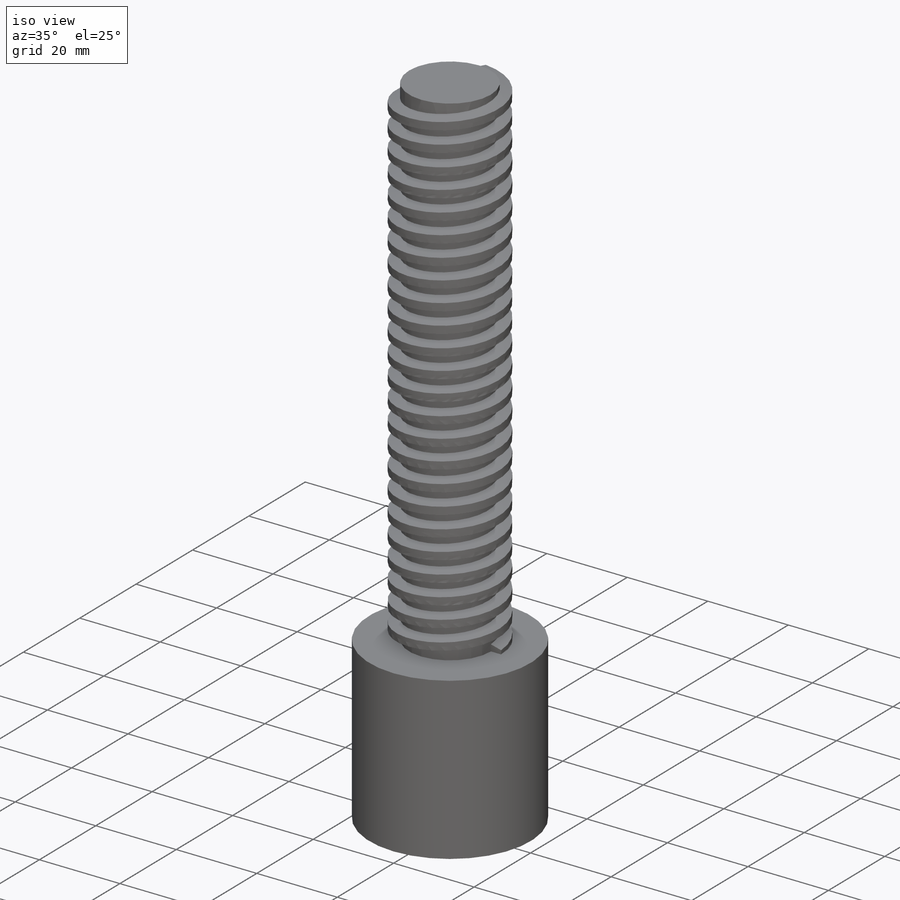
[diagram: iso view]
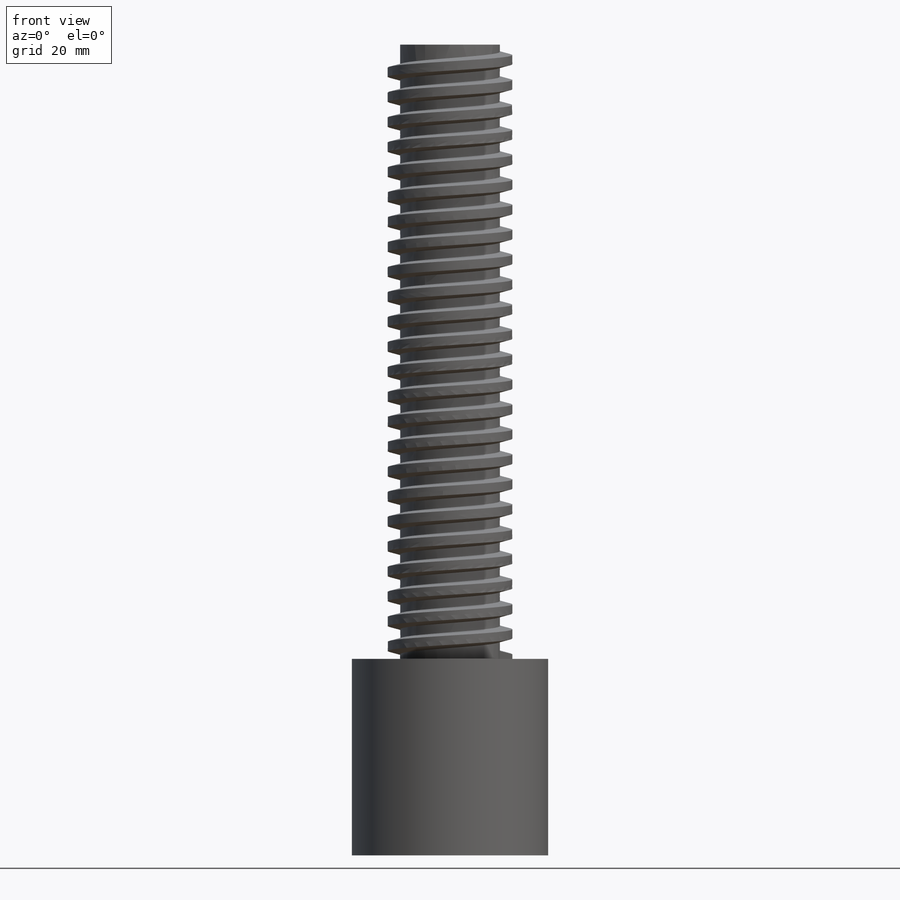
[diagram: front view]
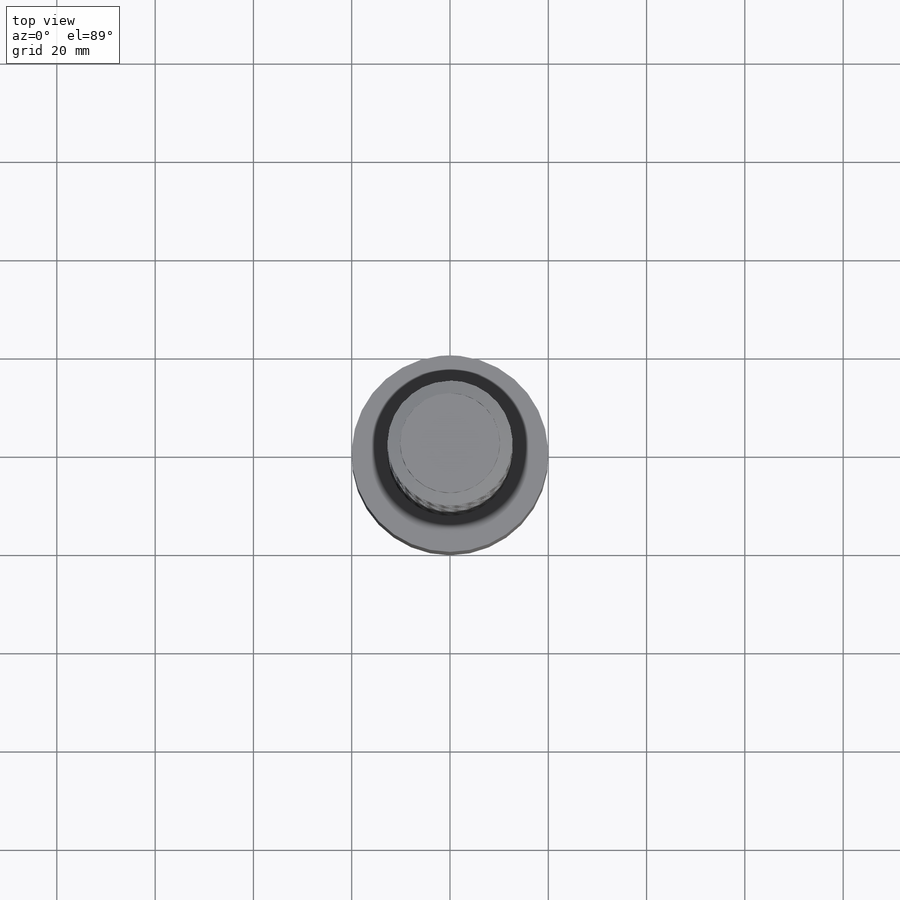
[diagram: top view]
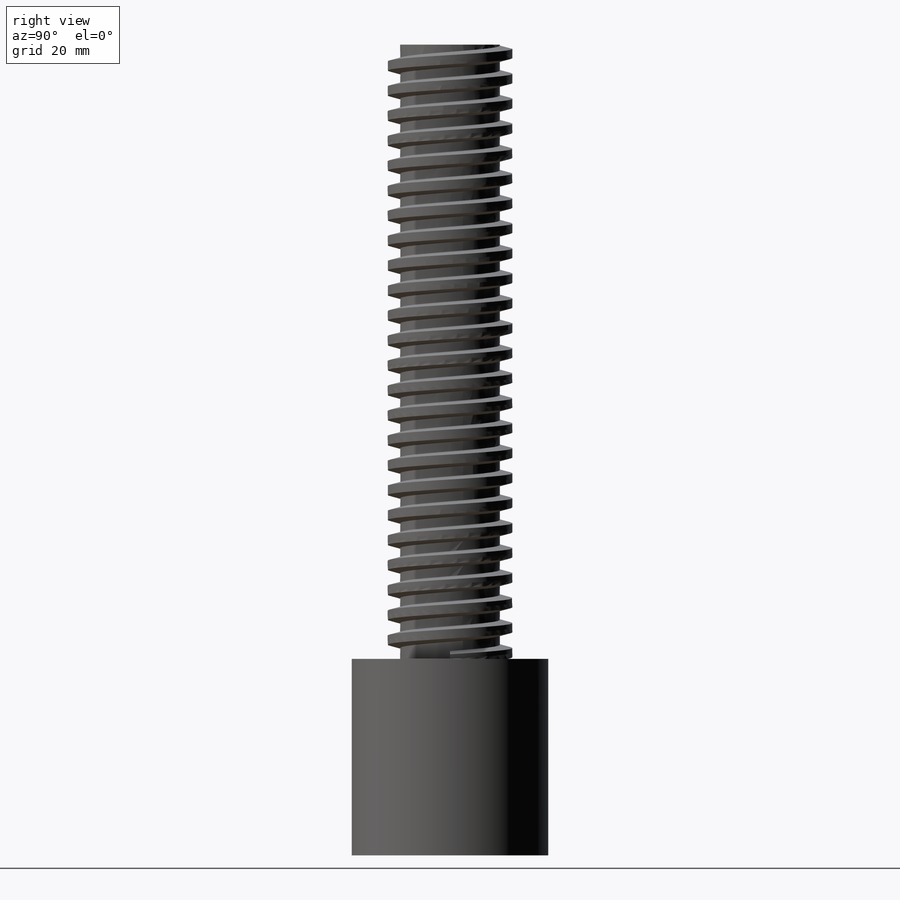
[diagram: right view]
SOLIDWORKS PART (.sldprt)
format: sldprt  version: not decoded by parser v0  size: 711,680 bytes
history: native  units: mm
features: sketch x6, extrude x2, cut_extrude x2, material x1, helix x1, sweep x1, fillet x1 (+12 scaffold rows collapsed)
feature tree (26):
  scaffold x12  (default folders/planes/origin — collapsed)
  material  "Material <not specified>"
  sketch  "Sketch1"  dims[D1=25.4mm]
  extrude  "Boss-Extrude1"  Depth=125mm
  sketch  "Sketch5"
  helix  "Helix/Spiral1"  Pitch=123.19mm
  sketch  "Sketch9"  dims[D1=2.54mm]
  cut_extrude  "Cut-Extrude1"  Depth=285.4mm
  sketch  "Sketch10"  dims[c1.D1=2.54mm c1.D2=2.54mm c1.D3=2.54mm c2.D3=~54.226201deg c3.D3=2.54mm c4.D3=14.5deg c4.D4=2.54mm c5.D4=14.5deg]
  sweep  "Sweep1"
  sketch  "Sketch2"  dims[D1=~20.492546mm]
  extrude  "Boss-Extrude2"  Depth=40mm
  sketch  "Sketch11"  dims[D1=7.9375mm D2=7.9375mm D3=1.0mm D4=45.0deg D5=1.0mm D6=45.0deg D7=1.0mm D8=45.0deg D9=1.0mm D10=45.0deg]
  cut_extrude  "Cut-Extrude2"  Depth=19.05mm
  fillet  "Fillet1"  Radius=1mm
decode coverage: 11 of 13 modeling features carry decoded parameters
note: ~ marks probable driven/reference dimensions
note: suppression state not decoded; provenance and decode notes live in map.json
